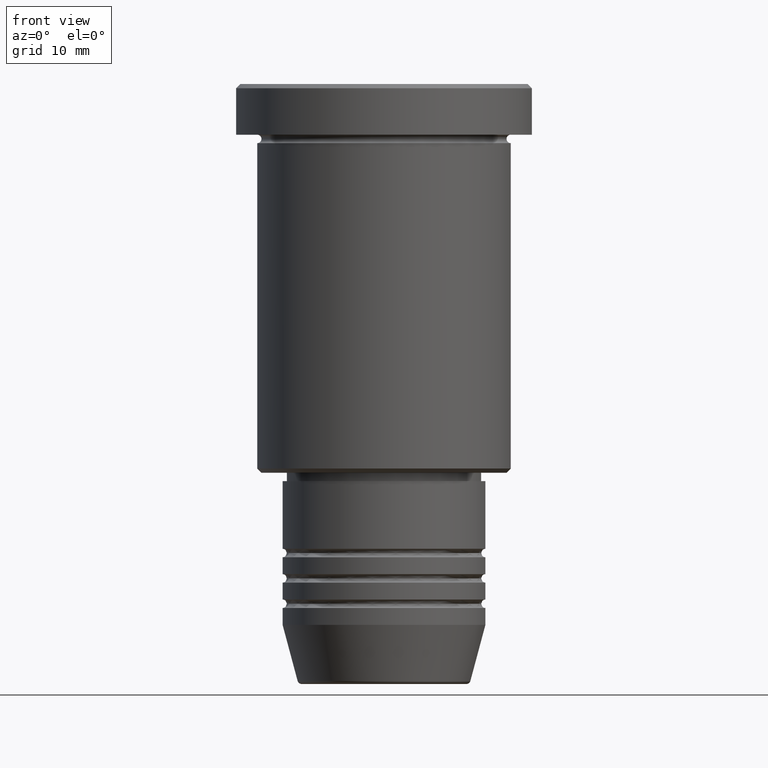
[diagram: clean part render]
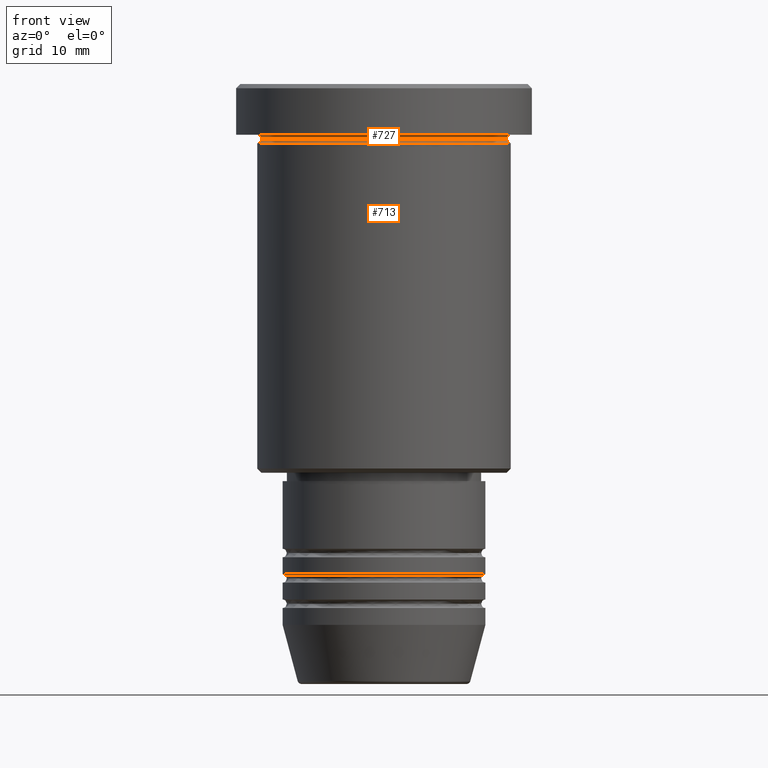
[diagram: same view with one multi-face feature highlighted, each face labeled with its STEP entity id]
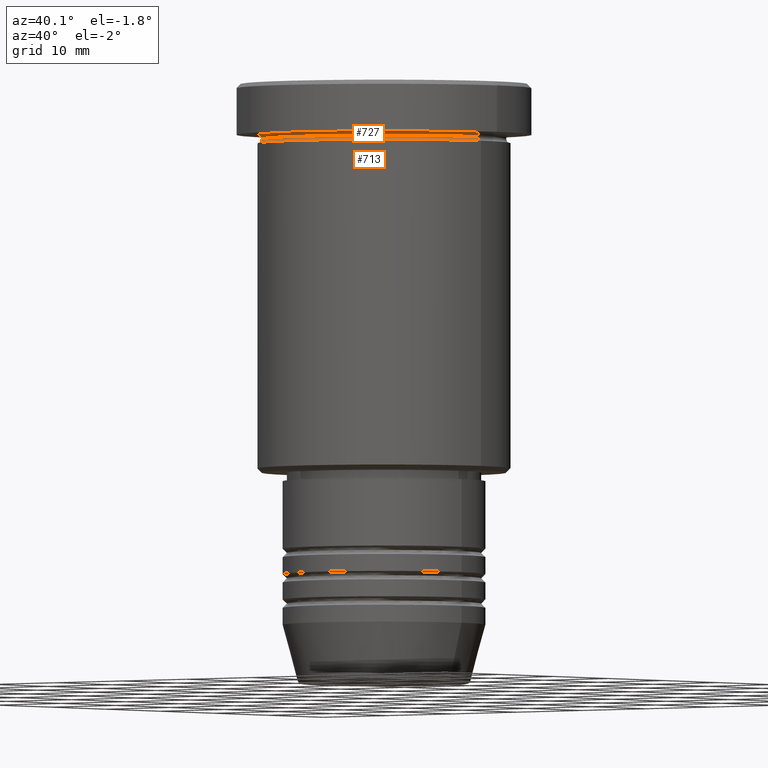
[diagram: same view with one multi-face feature highlighted, each face labeled with its STEP entity id]
A machine part, front view. The highlighted faces form ONE feature: a constant-radius fillet chain: 2 tangent blend faces with common blend radius 0.5 mm. The faces share edges in the B-rep.
A second angle (auxiliary view) of the same feature is appended — it is thin or edge-on in the first view.
Their STEP definitions:
[1] entity #713 (Torus):
#19 = VERTEX_POINT ( 'NONE', #307 ) ;
#96 = CIRCLE ( 'NONE', #859, 0.5000000000000004441 ) ;
#98 = CARTESIAN_POINT ( 'NONE',  ( 15.00000000000000000, 0.000000000000000000, -6.999999999999995559 ) ) ;
#118 = CARTESIAN_POINT ( 'NONE',  ( 14.49999999999999822, 0.000000000000000000, -6.499999999999995559 ) ) ;
#142 = CIRCLE ( 'NONE', #780, 14.49999999999999822 ) ;
#171 = DIRECTION ( 'NONE',  ( -0.000000000000000000, -0.000000000000000000, 1.000000000000000000 ) ) ;
#225 = AXIS2_PLACEMENT_3D ( 'NONE', #658, #534, #374 ) ;
#253 = TOROIDAL_SURFACE ( 'NONE', #650, 15.00000000000000000, 0.5000000000000000000 ) ;
#263 = VERTEX_POINT ( 'NONE', #98 ) ;
#275 = CIRCLE ( 'NONE', #225, 15.00000000000000000 ) ;
#283 = EDGE_CURVE ( 'NONE', #19, #263, #275, .T. ) ;
#307 = CARTESIAN_POINT ( 'NONE',  ( -15.00000000000000000, 1.836970198721029589E-15, -6.999999999999995559 ) ) ;
#312 = DIRECTION ( 'NONE',  ( 0.000000000000000000, -1.000000000000000000, 0.000000000000000000 ) ) ;
#359 = EDGE_LOOP ( 'NONE', ( #1028, #700, #562, #1030 ) ) ;
#374 = DIRECTION ( 'NONE',  ( 1.000000000000000000, 0.000000000000000000, 0.000000000000000000 ) ) ;
#390 = EDGE_CURVE ( 'NONE', #423, #263, #537, .T. ) ;
#423 = VERTEX_POINT ( 'NONE', #118 ) ;
#435 = CARTESIAN_POINT ( 'NONE',  ( -15.00000000000000000, 1.836970198721029589E-15, -6.499999999999995559 ) ) ;
#469 = AXIS2_PLACEMENT_3D ( 'NONE', #951, #312, #573 ) ;
#534 = DIRECTION ( 'NONE',  ( -0.000000000000000000, -0.000000000000000000, 1.000000000000000000 ) ) ;
#537 = CIRCLE ( 'NONE', #469, 0.5000000000000004441 ) ;
#538 = DIRECTION ( 'NONE',  ( -0.000000000000000000, -0.000000000000000000, 1.000000000000000000 ) ) ;
#562 = ORIENTED_EDGE ( 'NONE', *, *, #283, .T. ) ;
#573 = DIRECTION ( 'NONE',  ( 0.000000000000000000, 0.000000000000000000, -1.000000000000000000 ) ) ;
#584 = EDGE_CURVE ( 'NONE', #607, #423, #142, .T. ) ;
#607 = VERTEX_POINT ( 'NONE', #797 ) ;
#616 = EDGE_CURVE ( 'NONE', #607, #19, #96, .T. ) ;
#650 = AXIS2_PLACEMENT_3D ( 'NONE', #741, #538, #1105 ) ;
#658 = CARTESIAN_POINT ( 'NONE',  ( 0.000000000000000000, 0.000000000000000000, -6.999999999999995559 ) ) ;
#700 = ORIENTED_EDGE ( 'NONE', *, *, #616, .T. ) ;
#713 = ADVANCED_FACE ( 'NONE', ( #810 ), #253, .F. ) ;
#715 = DIRECTION ( 'NONE',  ( -1.000000000000000000, 1.224646799147349509E-16, 0.000000000000000000 ) ) ;
#741 = CARTESIAN_POINT ( 'NONE',  ( 0.000000000000000000, 0.000000000000000000, -6.499999999999995559 ) ) ;
#780 = AXIS2_PLACEMENT_3D ( 'NONE', #1071, #171, #891 ) ;
#797 = CARTESIAN_POINT ( 'NONE',  ( -14.49999999999999822, 1.806354028742345802E-15, -6.499999999999995559 ) ) ;
#803 = DIRECTION ( 'NONE',  ( 1.224646799147353207E-16, 1.000000000000000000, 0.000000000000000000 ) ) ;
#810 = FACE_OUTER_BOUND ( 'NONE', #359, .T. ) ;
#859 = AXIS2_PLACEMENT_3D ( 'NONE', #435, #803, #715 ) ;
#891 = DIRECTION ( 'NONE',  ( 1.000000000000000000, 0.000000000000000000, 0.000000000000000000 ) ) ;
#951 = CARTESIAN_POINT ( 'NONE',  ( 15.00000000000000000, 0.000000000000000000, -6.499999999999995559 ) ) ;
#1028 = ORIENTED_EDGE ( 'NONE', *, *, #584, .F. ) ;
#1030 = ORIENTED_EDGE ( 'NONE', *, *, #390, .F. ) ;
#1071 = CARTESIAN_POINT ( 'NONE',  ( 0.000000000000000000, 0.000000000000000000, -6.499999999999995559 ) ) ;
#1105 = DIRECTION ( 'NONE',  ( 1.000000000000000000, 0.000000000000000000, 0.000000000000000000 ) ) ;
[2] entity #727 (Torus):
#59 = ORIENTED_EDGE ( 'NONE', *, *, #137, .F. ) ;
#82 = DIRECTION ( 'NONE',  ( -1.000000000000000000, -1.224646799147349509E-16, 0.000000000000000000 ) ) ;
#90 = DIRECTION ( 'NONE',  ( 0.000000000000000000, 0.000000000000000000, -1.000000000000000000 ) ) ;
#118 = CARTESIAN_POINT ( 'NONE',  ( 14.49999999999999822, 0.000000000000000000, -6.499999999999995559 ) ) ;
#124 = EDGE_CURVE ( 'NONE', #423, #470, #331, .T. ) ;
#127 = EDGE_LOOP ( 'NONE', ( #228, #719, #200, #59 ) ) ;
#137 = EDGE_CURVE ( 'NONE', #607, #145, #828, .T. ) ;
#142 = CIRCLE ( 'NONE', #780, 14.49999999999999822 ) ;
#145 = VERTEX_POINT ( 'NONE', #330 ) ;
#169 = DIRECTION ( 'NONE',  ( -1.224646799147353207E-16, 1.000000000000000000, 0.000000000000000000 ) ) ;
#171 = DIRECTION ( 'NONE',  ( -0.000000000000000000, -0.000000000000000000, 1.000000000000000000 ) ) ;
#200 = ORIENTED_EDGE ( 'NONE', *, *, #604, .F. ) ;
#228 = ORIENTED_EDGE ( 'NONE', *, *, #584, .T. ) ;
#266 = CARTESIAN_POINT ( 'NONE',  ( 15.00000000000000000, 1.836970198721029589E-15, -6.499999999999995559 ) ) ;
#330 = CARTESIAN_POINT ( 'NONE',  ( -15.00000000000000000, 0.000000000000000000, -5.999999999999994671 ) ) ;
#331 = CIRCLE ( 'NONE', #504, 0.5000000000000004441 ) ;
#353 = CARTESIAN_POINT ( 'NONE',  ( 0.000000000000000000, 0.000000000000000000, -5.999999999999995559 ) ) ;
#423 = VERTEX_POINT ( 'NONE', #118 ) ;
#446 = DIRECTION ( 'NONE',  ( -0.000000000000000000, -1.000000000000000000, -0.000000000000000000 ) ) ;
#470 = VERTEX_POINT ( 'NONE', #782 ) ;
#504 = AXIS2_PLACEMENT_3D ( 'NONE', #266, #169, #82 ) ;
#584 = EDGE_CURVE ( 'NONE', #607, #423, #142, .T. ) ;
#604 = EDGE_CURVE ( 'NONE', #145, #470, #801, .T. ) ;
#607 = VERTEX_POINT ( 'NONE', #797 ) ;
#617 = DIRECTION ( 'NONE',  ( -1.000000000000000000, 0.000000000000000000, 0.000000000000000000 ) ) ;
#657 = AXIS2_PLACEMENT_3D ( 'NONE', #1073, #446, #1148 ) ;
#719 = ORIENTED_EDGE ( 'NONE', *, *, #124, .T. ) ;
#727 = ADVANCED_FACE ( 'NONE', ( #907 ), #805, .F. ) ;
#780 = AXIS2_PLACEMENT_3D ( 'NONE', #1071, #171, #891 ) ;
#782 = CARTESIAN_POINT ( 'NONE',  ( 15.00000000000000000, 1.836970198721029589E-15, -5.999999999999994671 ) ) ;
#797 = CARTESIAN_POINT ( 'NONE',  ( -14.49999999999999822, 1.806354028742345802E-15, -6.499999999999995559 ) ) ;
#801 = CIRCLE ( 'NONE', #1034, 15.00000000000000000 ) ;
#805 = TOROIDAL_SURFACE ( 'NONE', #1183, 15.00000000000000000, 0.5000000000000000000 ) ;
#821 = CARTESIAN_POINT ( 'NONE',  ( 0.000000000000000000, 0.000000000000000000, -6.499999999999995559 ) ) ;
#828 = CIRCLE ( 'NONE', #657, 0.5000000000000004441 ) ;
#870 = DIRECTION ( 'NONE',  ( -0.000000000000000000, -0.000000000000000000, 1.000000000000000000 ) ) ;
#891 = DIRECTION ( 'NONE',  ( 1.000000000000000000, 0.000000000000000000, 0.000000000000000000 ) ) ;
#907 = FACE_OUTER_BOUND ( 'NONE', #127, .T. ) ;
#1034 = AXIS2_PLACEMENT_3D ( 'NONE', #353, #870, #617 ) ;
#1071 = CARTESIAN_POINT ( 'NONE',  ( 0.000000000000000000, 0.000000000000000000, -6.499999999999995559 ) ) ;
#1073 = CARTESIAN_POINT ( 'NONE',  ( -15.00000000000000000, 0.000000000000000000, -6.499999999999995559 ) ) ;
#1093 = DIRECTION ( 'NONE',  ( -1.000000000000000000, 0.000000000000000000, 0.000000000000000000 ) ) ;
#1148 = DIRECTION ( 'NONE',  ( 0.000000000000000000, 0.000000000000000000, -1.000000000000000000 ) ) ;
#1183 = AXIS2_PLACEMENT_3D ( 'NONE', #821, #90, #1093 ) ;